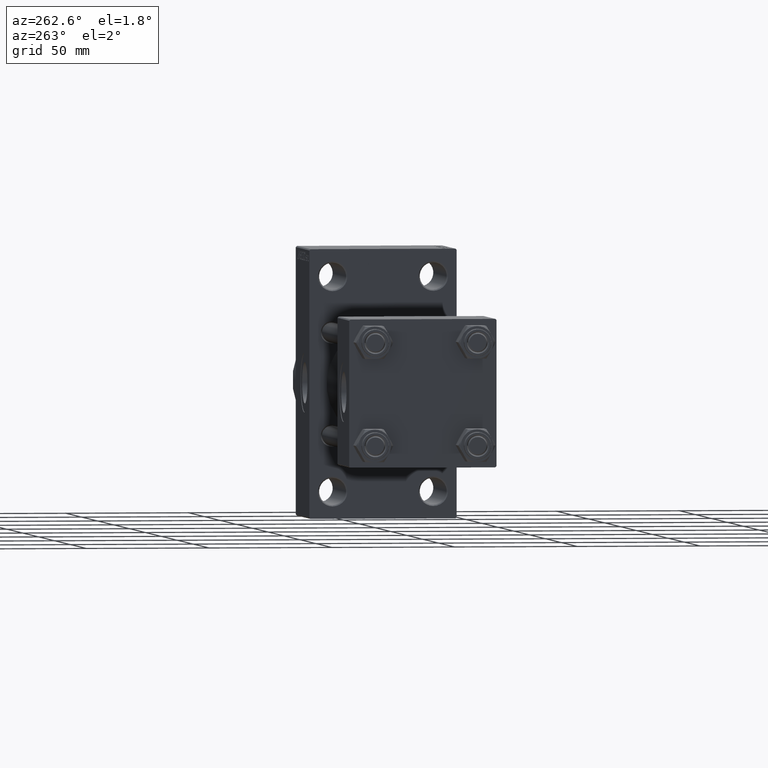
[diagram: clean part render]
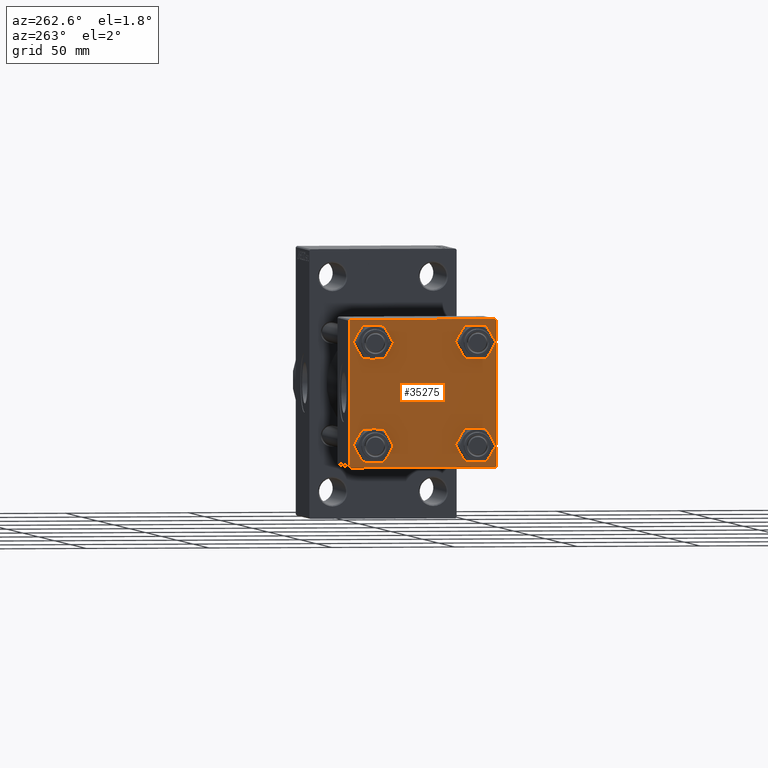
[diagram: same view with one face highlighted and labeled with its STEP entity id]
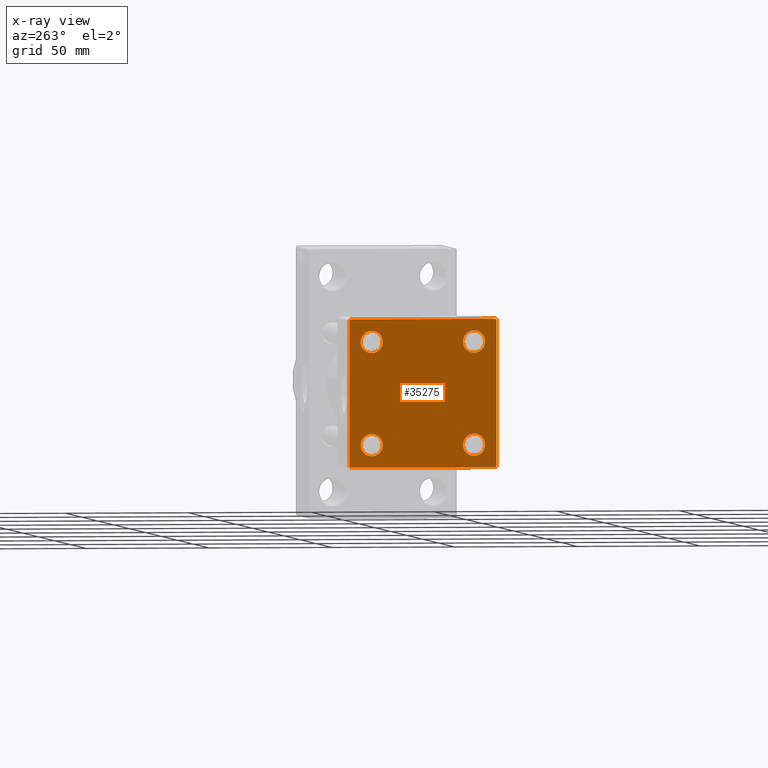
[diagram: x-ray of the same camera — body ghosted, the highlighted face saturated]
A machine part, auxiliary view. The second image highlights one B-rep face of the part: STEP entity #35275.
The next image is the same camera in x-ray: the body ghosted, the highlighted face saturated — about 0% of this face is hidden behind the body in this view.
In plain terms, the highlighted planar face has unit normal (-1, 0, 0).
Its self-contained STEP definition (entity closure, byte-faithful):
#534 = CARTESIAN_POINT ( 'NONE',  ( 0.000000000000000000, -29.50000000000000000, -30.00000000000000711 ) ) ;
#627 = CARTESIAN_POINT ( 'NONE',  ( 0.000000000000000000, -20.84999999999999076, 25.35000000000002274 ) ) ;
#1156 = DIRECTION ( 'NONE',  ( 0.000000000000000000, 0.000000000000000000, 1.000000000000000000 ) ) ;
#1403 = CARTESIAN_POINT ( 'NONE',  ( 0.000000000000000000, 0.000000000000000000, 0.000000000000000000 ) ) ;
#1567 = DIRECTION ( 'NONE',  ( 1.000000000000000000, -0.000000000000000000, 0.000000000000000000 ) ) ;
#2357 = LINE ( 'NONE', #10558, #37667 ) ;
#2518 = VERTEX_POINT ( 'NONE', #16712 ) ;
#2602 = VERTEX_POINT ( 'NONE', #13219 ) ;
#2694 = VERTEX_POINT ( 'NONE', #2763 ) ;
#2763 = CARTESIAN_POINT ( 'NONE',  ( 0.000000000000000000, -30.00000000000000000, -29.50000000000001776 ) ) ;
#3506 = DIRECTION ( 'NONE',  ( 0.000000000000000000, 0.000000000000000000, 1.000000000000000000 ) ) ;
#3640 = VECTOR ( 'NONE', #28544, 1000.000000000000114 ) ;
#3921 = DIRECTION ( 'NONE',  ( 0.000000000000000000, 0.000000000000000000, 1.000000000000000000 ) ) ;
#4012 = DIRECTION ( 'NONE',  ( 1.000000000000000000, -0.000000000000000000, 0.000000000000000000 ) ) ;
#4890 = FACE_OUTER_BOUND ( 'NONE', #23993, .T. ) ;
#4968 = EDGE_CURVE ( 'NONE', #2602, #23725, #13008, .T. ) ;
#5040 = EDGE_CURVE ( 'NONE', #44558, #16403, #10673, .T. ) ;
#5409 = EDGE_CURVE ( 'NONE', #10779, #28776, #2357, .T. ) ;
#6036 = CARTESIAN_POINT ( 'NONE',  ( 0.000000000000000000, 20.84999999999999787, 20.85000000000000142 ) ) ;
#6887 = CARTESIAN_POINT ( 'NONE',  ( 0.000000000000000000, 20.84999999999999787, 25.35000000000001918 ) ) ;
#7149 = CARTESIAN_POINT ( 'NONE',  ( 0.000000000000000000, 29.99999999999999289, 30.00000000000000000 ) ) ;
#7251 = CARTESIAN_POINT ( 'NONE',  ( 0.000000000000000000, 29.74999999999957723, -29.75000000000040501 ) ) ;
#7284 = CARTESIAN_POINT ( 'NONE',  ( 0.000000000000000000, 20.84999999999999787, 20.85000000000000142 ) ) ;
#7311 = CARTESIAN_POINT ( 'NONE',  ( 0.000000000000000000, 20.84999999999999787, -20.85000000000000142 ) ) ;
#7375 = CIRCLE ( 'NONE', #13723, 4.500000000000017764 ) ;
#8165 = EDGE_CURVE ( 'NONE', #21777, #26419, #13399, .T. ) ;
#9569 = VECTOR ( 'NONE', #37177, 1000.000000000000000 ) ;
#9603 = LINE ( 'NONE', #21267, #17955 ) ;
#9691 = DIRECTION ( 'NONE',  ( 1.000000000000000000, -0.000000000000000000, 0.000000000000000000 ) ) ;
#10558 = CARTESIAN_POINT ( 'NONE',  ( 0.000000000000000000, 29.99999999999999289, -30.00000000000000000 ) ) ;
#10673 = CIRCLE ( 'NONE', #35289, 4.500000000000017764 ) ;
#10779 = VERTEX_POINT ( 'NONE', #44780 ) ;
#11223 = CARTESIAN_POINT ( 'NONE',  ( 0.000000000000000000, -20.84999999999999076, 16.34999999999998721 ) ) ;
#11341 = VERTEX_POINT ( 'NONE', #6887 ) ;
#11378 = ORIENTED_EDGE ( 'NONE', *, *, #43528, .T. ) ;
#12004 = VECTOR ( 'NONE', #18831, 1000.000000000000000 ) ;
#12840 = DIRECTION ( 'NONE',  ( 1.000000000000000000, -0.000000000000000000, 0.000000000000000000 ) ) ;
#12844 = DIRECTION ( 'NONE',  ( -1.000000000000000000, 0.000000000000000000, -0.000000000000000000 ) ) ;
#12903 = ORIENTED_EDGE ( 'NONE', *, *, #38222, .F. ) ;
#13008 = CIRCLE ( 'NONE', #24103, 4.500000000000017764 ) ;
#13219 = CARTESIAN_POINT ( 'NONE',  ( 0.000000000000000000, 20.84999999999999787, -25.35000000000001918 ) ) ;
#13399 = LINE ( 'NONE', #17127, #3640 ) ;
#13464 = ORIENTED_EDGE ( 'NONE', *, *, #22255, .F. ) ;
#13494 = ORIENTED_EDGE ( 'NONE', *, *, #5040, .T. ) ;
#13723 = AXIS2_PLACEMENT_3D ( 'NONE', #6036, #1567, #35868 ) ;
#14602 = CARTESIAN_POINT ( 'NONE',  ( 0.000000000000000000, -29.49999999999998579, 29.99999999999999289 ) ) ;
#14789 = ORIENTED_EDGE ( 'NONE', *, *, #22695, .T. ) ;
#14920 = ORIENTED_EDGE ( 'NONE', *, *, #4968, .T. ) ;
#16047 = VECTOR ( 'NONE', #39656, 1000.000000000000114 ) ;
#16298 = CARTESIAN_POINT ( 'NONE',  ( 0.000000000000000000, -29.75000000000001066, -29.75000000000001066 ) ) ;
#16340 = FACE_BOUND ( 'NONE', #23004, .T. ) ;
#16403 = VERTEX_POINT ( 'NONE', #627 ) ;
#16712 = CARTESIAN_POINT ( 'NONE',  ( 0.000000000000000000, 20.84999999999999787, 16.34999999999998366 ) ) ;
#17068 = FACE_BOUND ( 'NONE', #47571, .T. ) ;
#17127 = CARTESIAN_POINT ( 'NONE',  ( 0.000000000000000000, 29.74999999999999645, 29.74999999999999645 ) ) ;
#17955 = VECTOR ( 'NONE', #39170, 1000.000000000000000 ) ;
#18451 = ORIENTED_EDGE ( 'NONE', *, *, #34815, .T. ) ;
#18492 = ORIENTED_EDGE ( 'NONE', *, *, #8165, .T. ) ;
#18831 = DIRECTION ( 'NONE',  ( 0.000000000000000000, 0.000000000000000000, -1.000000000000000000 ) ) ;
#19060 = CIRCLE ( 'NONE', #37305, 4.500000000000017764 ) ;
#19425 = AXIS2_PLACEMENT_3D ( 'NONE', #38447, #41938, #3921 ) ;
#19497 = AXIS2_PLACEMENT_3D ( 'NONE', #1403, #12844, #35212 ) ;
#20031 = LINE ( 'NONE', #16298, #23126 ) ;
#20560 = FACE_BOUND ( 'NONE', #41646, .T. ) ;
#21041 = FACE_BOUND ( 'NONE', #29778, .T. ) ;
#21061 = EDGE_CURVE ( 'NONE', #44062, #25860, #19060, .T. ) ;
#21267 = CARTESIAN_POINT ( 'NONE',  ( 0.000000000000000000, 29.99999999999999289, 30.00000000000000000 ) ) ;
#21363 = DIRECTION ( 'NONE',  ( 0.000000000000000000, 0.000000000000000000, 1.000000000000000000 ) ) ;
#21777 = VERTEX_POINT ( 'NONE', #43032 ) ;
#22213 = DIRECTION ( 'NONE',  ( 1.000000000000000000, -0.000000000000000000, 0.000000000000000000 ) ) ;
#22255 = EDGE_CURVE ( 'NONE', #25048, #2694, #37414, .T. ) ;
#22695 = EDGE_CURVE ( 'NONE', #16403, #44558, #47624, .T. ) ;
#23004 = EDGE_LOOP ( 'NONE', ( #29424, #28029 ) ) ;
#23005 = CARTESIAN_POINT ( 'NONE',  ( 0.000000000000000000, 20.84999999999999787, -16.34999999999998366 ) ) ;
#23126 = VECTOR ( 'NONE', #43599, 1000.000000000000114 ) ;
#23725 = VERTEX_POINT ( 'NONE', #23005 ) ;
#23909 = DIRECTION ( 'NONE',  ( 0.000000000000000000, 0.000000000000000000, 1.000000000000000000 ) ) ;
#23993 = EDGE_LOOP ( 'NONE', ( #46314, #11378, #37512, #29680, #13464, #43732, #12903, #18492 ) ) ;
#24103 = AXIS2_PLACEMENT_3D ( 'NONE', #42025, #4012, #3506 ) ;
#24240 = CARTESIAN_POINT ( 'NONE',  ( 0.000000000000000000, -20.84999999999999076, -25.35000000000002274 ) ) ;
#24813 = EDGE_CURVE ( 'NONE', #23725, #2602, #48526, .T. ) ;
#25048 = VERTEX_POINT ( 'NONE', #28873 ) ;
#25790 = VERTEX_POINT ( 'NONE', #31208 ) ;
#25860 = VERTEX_POINT ( 'NONE', #24240 ) ;
#25970 = EDGE_CURVE ( 'NONE', #25048, #26534, #36650, .T. ) ;
#26192 = DIRECTION ( 'NONE',  ( 0.000000000000000000, 0.000000000000000000, 1.000000000000000000 ) ) ;
#26419 = VERTEX_POINT ( 'NONE', #33239 ) ;
#26512 = LINE ( 'NONE', #7149, #12004 ) ;
#26534 = VERTEX_POINT ( 'NONE', #14602 ) ;
#26590 = EDGE_CURVE ( 'NONE', #26419, #25790, #26512, .T. ) ;
#26652 = DIRECTION ( 'NONE',  ( 1.000000000000000000, -0.000000000000000000, 0.000000000000000000 ) ) ;
#27290 = EDGE_CURVE ( 'NONE', #28776, #2694, #20031, .T. ) ;
#28029 = ORIENTED_EDGE ( 'NONE', *, *, #34195, .T. ) ;
#28370 = CARTESIAN_POINT ( 'NONE',  ( 0.000000000000000000, -20.84999999999999076, 20.85000000000000497 ) ) ;
#28544 = DIRECTION ( 'NONE',  ( 0.000000000000000000, 0.7071067811865474617, -0.7071067811865474617 ) ) ;
#28562 = AXIS2_PLACEMENT_3D ( 'NONE', #28370, #47255, #23909 ) ;
#28776 = VERTEX_POINT ( 'NONE', #534 ) ;
#28873 = CARTESIAN_POINT ( 'NONE',  ( 0.000000000000000000, -30.00000000000000000, 29.49999999999999289 ) ) ;
#28937 = DIRECTION ( 'NONE',  ( 0.000000000000000000, -1.000000000000000000, -1.156482317317871725E-16 ) ) ;
#29059 = CARTESIAN_POINT ( 'NONE',  ( 0.000000000000000000, -20.84999999999999076, 20.85000000000000497 ) ) ;
#29424 = ORIENTED_EDGE ( 'NONE', *, *, #21061, .T. ) ;
#29680 = ORIENTED_EDGE ( 'NONE', *, *, #27290, .T. ) ;
#29778 = EDGE_LOOP ( 'NONE', ( #42439, #14920 ) ) ;
#29951 = ORIENTED_EDGE ( 'NONE', *, *, #31315, .T. ) ;
#31193 = CARTESIAN_POINT ( 'NONE',  ( 0.000000000000000000, -20.84999999999999076, -16.34999999999998721 ) ) ;
#31208 = CARTESIAN_POINT ( 'NONE',  ( 0.000000000000000000, 29.99999999999999289, -29.50000000000000000 ) ) ;
#31281 = CIRCLE ( 'NONE', #19425, 4.500000000000017764 ) ;
#31315 = EDGE_CURVE ( 'NONE', #2518, #11341, #7375, .T. ) ;
#33239 = CARTESIAN_POINT ( 'NONE',  ( 0.000000000000000000, 29.99999999999999289, 29.50000000000000000 ) ) ;
#33687 = CARTESIAN_POINT ( 'NONE',  ( 0.000000000000000000, -30.00000000000000000, 29.99999999999999289 ) ) ;
#34195 = EDGE_CURVE ( 'NONE', #25860, #44062, #31281, .T. ) ;
#34323 = DIRECTION ( 'NONE',  ( -0.000000000000000000, -0.7071067811865574537, -0.7071067811865376918 ) ) ;
#34516 = CIRCLE ( 'NONE', #40872, 4.500000000000017764 ) ;
#34815 = EDGE_CURVE ( 'NONE', #11341, #2518, #34516, .T. ) ;
#35212 = DIRECTION ( 'NONE',  ( -0.000000000000000000, 0.000000000000000000, 1.000000000000000000 ) ) ;
#35275 = ADVANCED_FACE ( 'NONE', ( #17068, #16340, #21041, #20560, #4890 ), #46638, .T. ) ;
#35289 = AXIS2_PLACEMENT_3D ( 'NONE', #29059, #9691, #21363 ) ;
#35868 = DIRECTION ( 'NONE',  ( 0.000000000000000000, 0.000000000000000000, 1.000000000000000000 ) ) ;
#36650 = LINE ( 'NONE', #44106, #16047 ) ;
#37177 = DIRECTION ( 'NONE',  ( 0.000000000000000000, 0.000000000000000000, -1.000000000000000000 ) ) ;
#37305 = AXIS2_PLACEMENT_3D ( 'NONE', #47117, #12840, #1156 ) ;
#37414 = LINE ( 'NONE', #33687, #9569 ) ;
#37512 = ORIENTED_EDGE ( 'NONE', *, *, #5409, .T. ) ;
#37667 = VECTOR ( 'NONE', #28937, 1000.000000000000000 ) ;
#38061 = LINE ( 'NONE', #7251, #48937 ) ;
#38222 = EDGE_CURVE ( 'NONE', #21777, #26534, #9603, .T. ) ;
#38447 = CARTESIAN_POINT ( 'NONE',  ( 0.000000000000000000, -20.84999999999999076, -20.85000000000000497 ) ) ;
#39170 = DIRECTION ( 'NONE',  ( 0.000000000000000000, -1.000000000000000000, -1.156482317317871725E-16 ) ) ;
#39656 = DIRECTION ( 'NONE',  ( -0.000000000000000000, 0.7071067811865474617, 0.7071067811865474617 ) ) ;
#40872 = AXIS2_PLACEMENT_3D ( 'NONE', #7284, #26652, #45540 ) ;
#41646 = EDGE_LOOP ( 'NONE', ( #18451, #29951 ) ) ;
#41938 = DIRECTION ( 'NONE',  ( 1.000000000000000000, -0.000000000000000000, 0.000000000000000000 ) ) ;
#42025 = CARTESIAN_POINT ( 'NONE',  ( 0.000000000000000000, 20.84999999999999787, -20.85000000000000142 ) ) ;
#42439 = ORIENTED_EDGE ( 'NONE', *, *, #24813, .T. ) ;
#42988 = AXIS2_PLACEMENT_3D ( 'NONE', #7311, #22213, #26192 ) ;
#43032 = CARTESIAN_POINT ( 'NONE',  ( 0.000000000000000000, 29.49999999999999289, 30.00000000000000000 ) ) ;
#43528 = EDGE_CURVE ( 'NONE', #25790, #10779, #38061, .T. ) ;
#43599 = DIRECTION ( 'NONE',  ( 0.000000000000000000, -0.7071067811865474617, 0.7071067811865474617 ) ) ;
#43732 = ORIENTED_EDGE ( 'NONE', *, *, #25970, .T. ) ;
#44062 = VERTEX_POINT ( 'NONE', #31193 ) ;
#44106 = CARTESIAN_POINT ( 'NONE',  ( -0.000000000000000000, -29.74999999999999645, 29.74999999999999645 ) ) ;
#44558 = VERTEX_POINT ( 'NONE', #11223 ) ;
#44780 = CARTESIAN_POINT ( 'NONE',  ( 0.000000000000000000, 29.49999999999997868, -30.00000000000000000 ) ) ;
#45540 = DIRECTION ( 'NONE',  ( 0.000000000000000000, 0.000000000000000000, 1.000000000000000000 ) ) ;
#46314 = ORIENTED_EDGE ( 'NONE', *, *, #26590, .T. ) ;
#46638 = PLANE ( 'NONE',  #19497 ) ;
#47117 = CARTESIAN_POINT ( 'NONE',  ( 0.000000000000000000, -20.84999999999999076, -20.85000000000000497 ) ) ;
#47255 = DIRECTION ( 'NONE',  ( 1.000000000000000000, -0.000000000000000000, 0.000000000000000000 ) ) ;
#47571 = EDGE_LOOP ( 'NONE', ( #14789, #13494 ) ) ;
#47624 = CIRCLE ( 'NONE', #28562, 4.500000000000017764 ) ;
#48526 = CIRCLE ( 'NONE', #42988, 4.500000000000017764 ) ;
#48937 = VECTOR ( 'NONE', #34323, 999.9999999999998863 ) ;